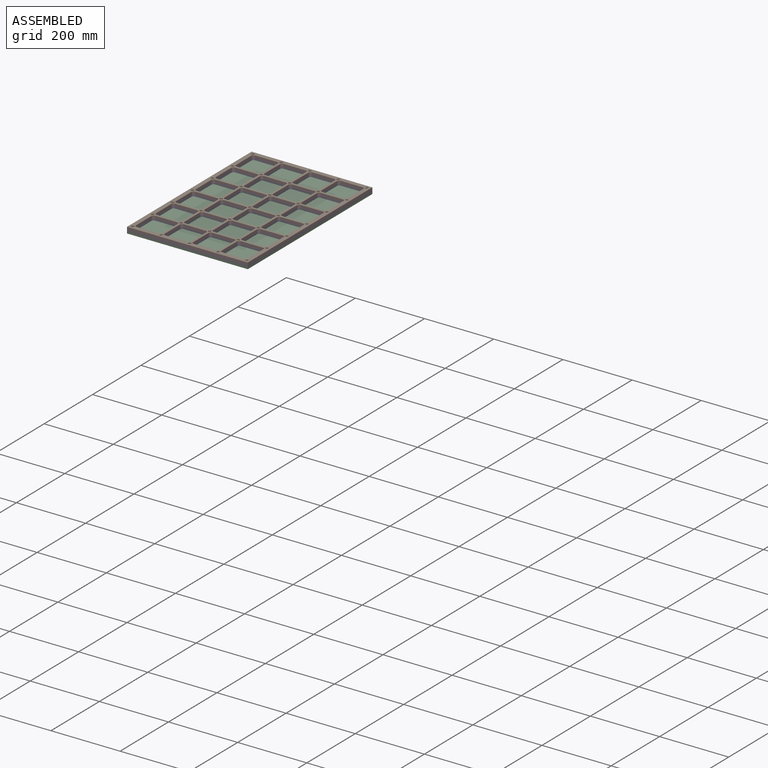
[diagram: assembled view]
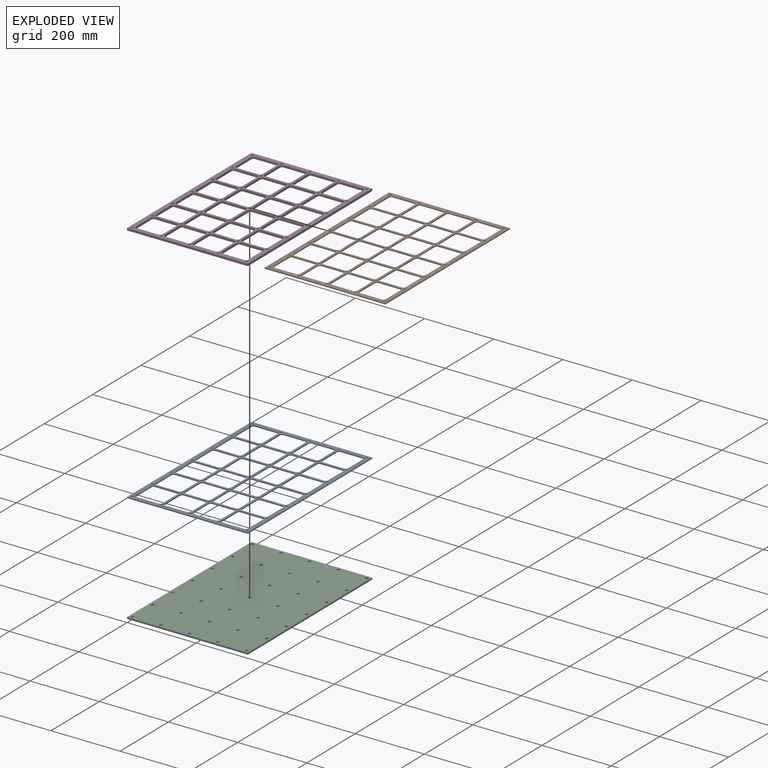
[diagram: exploded view]
GUIDED TOUR — MATED ASSEMBLY (Onshape document f6694bb7066e561d8f96e8ac, AutoMate assembly f6694bb7066e561d8f96e8ac_5a69646c0f88096b816d0bf5_1c54b257c101a52a9ec0c45c_default)

This assembly has 4 components, labeled P0..P3 below (a component is one placed occurrence of a part; the same part can appear more than once), held together by 3 mates. A mate is a constraint between two components; its type names the relative motion it leaves free:
  PLANAR — leaves sliding in the plane through the listed point (normal = the listed direction) and rotation about that normal free.
Axis/direction vectors are unit vectors and 'through' points are millimeter coordinates, both in the assembly's world frame.

MATES
  1. PLANAR "Planar 3": P1 <-> P3, direction (1.000, 0.000, 0.000) through (174.63, 0.00, 14.29) mm
  2. PLANAR "Planar 1": P0 <-> P2, direction (0.000, 0.000, -1.000) through (174.62, 257.17, 4.76) mm
  3. PLANAR "Planar 2": P3 <-> P0, direction (0.000, 1.000, 0.000) through (349.25, 257.17, 7.94) mm

ASSEMBLY ORDER
  1. P3 — the base component [order verified]
  2. P1 [order verified]
  3. P0 [order verified]
  4. P2 [order verified]
Order-tag legend:
  [order verified] — this step's position reverses a verified removal order: the component was checked to insert without passing through the ones already placed.

Of the 4 components, 4 carry the full construction recipe — the FeatureScript program that regenerates the part's solid from scratch; the rest are supplied as boundary geometry only.
Each toured component is shown spotlighted twice — in the assembled view, then in the exploded view, where a leader line traces a displaced component back to its assembled socket (saturated green if recipe-attached, orange if geometry-only; every other component desaturated gray) — followed by its recipe or geometry summary and the mates that hold it.
NOTE — document 2 of 2 of this assembly tour. The two overview renders and the header above are repeated from document 1; the component sections below continue where the previous document stopped.
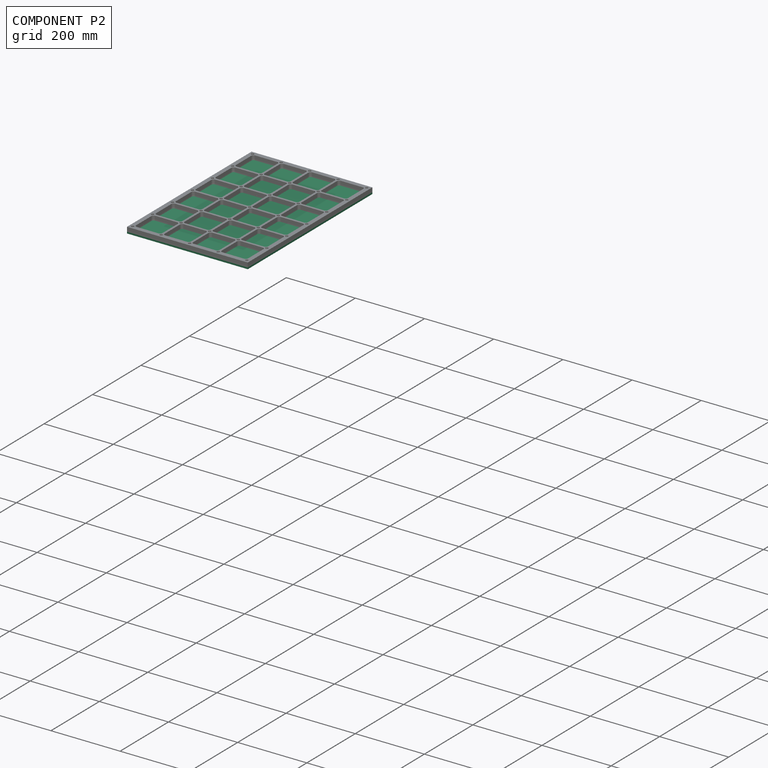
[diagram: component P2 — assembled]
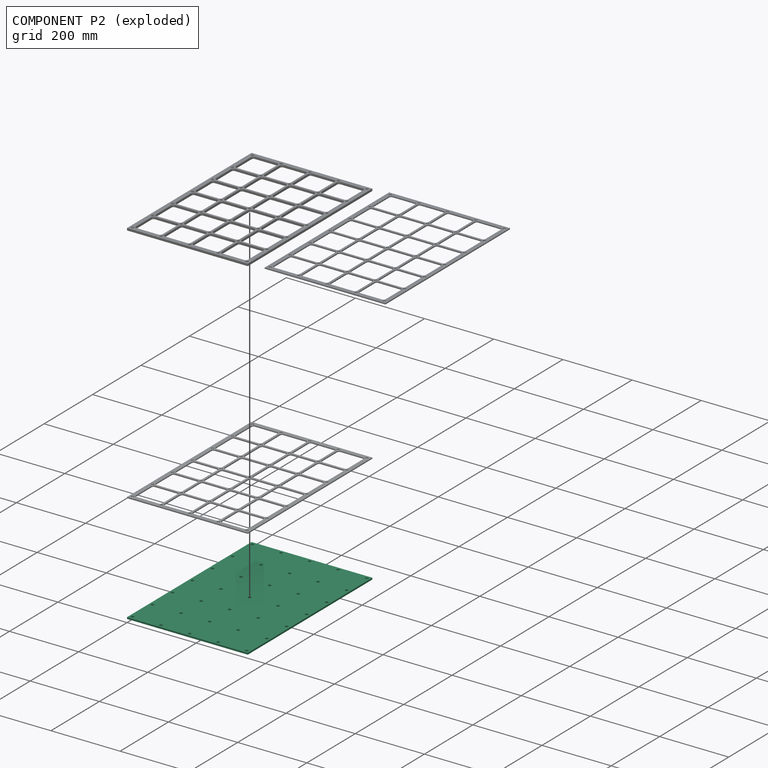
[diagram: component P2 — exploded]
COMPONENT P2 — recipe-attached (CADFS 00901685, mesh-verified: the recipe's output STEP matches this component's geometry to below the mesh-comparison resolution (tessellation chordal tolerance ~0.933 mm)).
Held by: PLANAR mate "Planar 1" to P0.
Construction recipe (FeatureScript — the CAD program that rebuilds this solid; sketch coordinates are in the units given by the * unit suffixes, e.g. mm):

FeatureScript 1511;
import(path : "onshape/std/geometry.fs", version : "1511.0");
import(path : "onshape/std/common.fs", version : "1511.0");
const mm = millimeter;
const VERTEX = EntityType.VERTEX;
const EDGE = EntityType.EDGE;
const FACE = EntityType.FACE;
const BODY = EntityType.BODY;
function v(x, y){return vector(x, y);}
function OD(order){return orderDisambiguation(order);}
function OSD(set){return originalSetDisambiguation(set);}
function TD(topology){return topologyDisambiguation(topology);}
function TDD(query){return trueDependencyDisambiguation(query);}
function sQuery(a, b, c) {return sketchEntityQuery(a, b, c);}

annotation { "Feature Type Name" : "Feature", "Feature Type Description" : "" }
export const myFeature = defineFeature(function(context is Context, id is Id, definition is map)
    precondition{}
    {
        {
            var Q0;
            Q0=qCreatedBy(makeId("Top.planeOp"),FACE);
            var sketch = newSketch(context, id + "F0", { "sketchPlane" : qUnion([Q0])});
            skLineSegment(sketch, "E0.bottom", {"start": v(0, 0) * mm, "end": v(349.25, 0) * mm});
            skLineSegment(sketch, "E0.top", {"start": v(0, 514.35) * mm, "end": v(349.25, 514.35) * mm});
            skLineSegment(sketch, "E0.left", {"start": v(0, 0) * mm, "end": v(0, 514.35) * mm});
            skLineSegment(sketch, "E0.right", {"start": v(349.25, 0) * mm, "end": v(349.25, 514.35) * mm});
            skLineSegment(sketch, "E1.bottom", {"start": v(19.05, 12.7) * mm, "end": v(82.55, 12.7) * mm, "construction": true});
            skLineSegment(sketch, "E1.top", {"start": v(19.05, 88.9) * mm, "end": v(82.55, 88.9) * mm, "construction": true});
            skLineSegment(sketch, "E1.left", {"start": v(12.7, 19.05) * mm, "end": v(12.7, 82.55) * mm, "construction": true});
            skLineSegment(sketch, "E1.right", {"start": v(88.9, 19.05) * mm, "end": v(88.9, 82.55) * mm, "construction": true});
            skArc(sketch, "E2.filletArc", {"start": v(19.05, 88.9) * mm, "mid": v(14.56, 87.04) * mm, "end": v(12.7, 82.55) * mm, "construction": true});
            skArc(sketch, "E3.filletArc", {"start": v(88.9, 82.55) * mm, "mid": v(87.04, 87.04) * mm, "end": v(82.55, 88.9) * mm, "construction": true});
            skArc(sketch, "E4.filletArc", {"start": v(82.55, 12.7) * mm, "mid": v(87.04, 14.56) * mm, "end": v(88.9, 19.05) * mm, "construction": true});
            skArc(sketch, "E5.filletArc", {"start": v(12.7, 19.05) * mm, "mid": v(14.56, 14.56) * mm, "end": v(19.05, 12.7) * mm, "construction": true});
            skLineSegment(sketch, "E6.0.1.0", {"start": v(19.05, 171.45) * mm, "end": v(82.55, 171.45) * mm, "construction": true});
            skLineSegment(sketch, "E6.0.1.1", {"start": v(88.9, 101.6) * mm, "end": v(88.9, 165.1) * mm, "construction": true});
            skArc(sketch, "E6.0.1.2", {"start": v(88.9, 165.1) * mm, "mid": v(87.04, 169.6) * mm, "end": v(82.55, 171.45) * mm, "construction": true});
            skArc(sketch, "E6.0.1.3", {"start": v(82.55, 95.25) * mm, "mid": v(87.04, 97.1) * mm, "end": v(88.9, 101.6) * mm, "construction": true});
            skLineSegment(sketch, "E6.0.1.4", {"start": v(19.05, 95.25) * mm, "end": v(82.55, 95.25) * mm, "construction": true});
            skArc(sketch, "E6.0.1.5", {"start": v(12.7, 101.6) * mm, "mid": v(14.56, 97.1) * mm, "end": v(19.05, 95.25) * mm, "construction": true});
            skLineSegment(sketch, "E6.0.1.6", {"start": v(12.7, 101.6) * mm, "end": v(12.7, 165.1) * mm, "construction": true});
            skArc(sketch, "E6.0.1.7", {"start": v(19.05, 171.45) * mm, "mid": v(14.56, 169.6) * mm, "end": v(12.7, 165.1) * mm, "construction": true});
            skLineSegment(sketch, "E6.0.2.0", {"start": v(19.05, 254) * mm, "end": v(82.55, 254) * mm, "construction": true});
            skLineSegment(sketch, "E6.0.2.1", {"start": v(88.9, 184.15) * mm, "end": v(88.9, 247.65) * mm, "construction": true});
            skArc(sketch, "E6.0.2.2", {"start": v(88.9, 247.65) * mm, "mid": v(87.04, 252.14) * mm, "end": v(82.55, 254) * mm, "construction": true});
            skArc(sketch, "E6.0.2.3", {"start": v(82.55, 177.8) * mm, "mid": v(87.04, 179.66) * mm, "end": v(88.9, 184.15) * mm, "construction": true});
            skLineSegment(sketch, "E6.0.2.4", {"start": v(19.05, 177.8) * mm, "end": v(82.55, 177.8) * mm, "construction": true});
            skArc(sketch, "E6.0.2.5", {"start": v(12.7, 184.15) * mm, "mid": v(14.56, 179.66) * mm, "end": v(19.05, 177.8) * mm, "construction": true});
            skLineSegment(sketch, "E6.0.2.6", {"start": v(12.7, 184.15) * mm, "end": v(12.7, 247.65) * mm, "construction": true});
            skArc(sketch, "E6.0.2.7", {"start": v(19.05, 254) * mm, "mid": v(14.56, 252.14) * mm, "end": v(12.7, 247.65) * mm, "construction": true});
            skLineSegment(sketch, "E6.0.3.0", {"start": v(19.05, 336.55) * mm, "end": v(82.55, 336.55) * mm, "construction": true});
            skLineSegment(sketch, "E6.0.3.1", {"start": v(88.9, 266.7) * mm, "end": v(88.9, 330.2) * mm, "construction": true});
            skArc(sketch, "E6.0.3.2", {"start": v(88.9, 330.2) * mm, "mid": v(87.04, 334.7) * mm, "end": v(82.55, 336.55) * mm, "construction": true});
            skArc(sketch, "E6.0.3.3", {"start": v(82.55, 260.35) * mm, "mid": v(87.04, 262.2) * mm, "end": v(88.9, 266.7) * mm, "construction": true});
            skLineSegment(sketch, "E6.0.3.4", {"start": v(19.05, 260.35) * mm, "end": v(82.55, 260.35) * mm, "construction": true});
            skArc(sketch, "E6.0.3.5", {"start": v(12.7, 266.7) * mm, "mid": v(14.56, 262.2) * mm, "end": v(19.05, 260.35) * mm, "construction": true});
            skLineSegment(sketch, "E6.0.3.6", {"start": v(12.7, 266.7) * mm, "end": v(12.7, 330.2) * mm, "construction": true});
            skArc(sketch, "E6.0.3.7", {"start": v(19.05, 336.55) * mm, "mid": v(14.56, 334.7) * mm, "end": v(12.7, 330.2) * mm, "construction": true});
            skLineSegment(sketch, "E6.0.4.0", {"start": v(19.05, 419.1) * mm, "end": v(82.55, 419.1) * mm, "construction": true});
            skLineSegment(sketch, "E6.0.4.1", {"start": v(88.9, 349.25) * mm, "end": v(88.9, 412.75) * mm, "construction": true});
            skArc(sketch, "E6.0.4.2", {"start": v(88.9, 412.75) * mm, "mid": v(87.04, 417.24) * mm, "end": v(82.55, 419.1) * mm, "construction": true});
            skArc(sketch, "E6.0.4.3", {"start": v(82.55, 342.9) * mm, "mid": v(87.04, 344.76) * mm, "end": v(88.9, 349.25) * mm, "construction": true});
            skLineSegment(sketch, "E6.0.4.4", {"start": v(19.05, 342.9) * mm, "end": v(82.55, 342.9) * mm, "construction": true});
            skArc(sketch, "E6.0.4.5", {"start": v(12.7, 349.25) * mm, "mid": v(14.56, 344.76) * mm, "end": v(19.05, 342.9) * mm, "construction": true});
            skLineSegment(sketch, "E6.0.4.6", {"start": v(12.7, 349.25) * mm, "end": v(12.7, 412.75) * mm, "construction": true});
            skArc(sketch, "E6.0.4.7", {"start": v(19.05, 419.1) * mm, "mid": v(14.56, 417.24) * mm, "end": v(12.7, 412.75) * mm, "construction": true});
            skLineSegment(sketch, "E6.0.5.0", {"start": v(19.05, 501.65) * mm, "end": v(82.55, 501.65) * mm, "construction": true});
            skLineSegment(sketch, "E6.0.5.1", {"start": v(88.9, 431.8) * mm, "end": v(88.9, 495.3) * mm, "construction": true});
            skArc(sketch, "E6.0.5.2", {"start": v(88.9, 495.3) * mm, "mid": v(87.04, 499.8) * mm, "end": v(82.55, 501.65) * mm, "construction": true});
            skArc(sketch, "E6.0.5.3", {"start": v(82.55, 425.45) * mm, "mid": v(87.04, 427.3) * mm, "end": v(88.9, 431.8) * mm, "construction": true});
            skLineSegment(sketch, "E6.0.5.4", {"start": v(19.05, 425.45) * mm, "end": v(82.55, 425.45) * mm, "construction": true});
            skArc(sketch, "E6.0.5.5", {"start": v(12.7, 431.8) * mm, "mid": v(14.56, 427.3) * mm, "end": v(19.05, 425.45) * mm, "construction": true});
            skLineSegment(sketch, "E6.0.5.6", {"start": v(12.7, 431.8) * mm, "end": v(12.7, 495.3) * mm, "construction": true});
            skArc(sketch, "E6.0.5.7", {"start": v(19.05, 501.65) * mm, "mid": v(14.56, 499.8) * mm, "end": v(12.7, 495.3) * mm, "construction": true});
            skLineSegment(sketch, "E6.1.0.0", {"start": v(101.6, 88.9) * mm, "end": v(165.1, 88.9) * mm, "construction": true});
            skLineSegment(sketch, "E6.1.0.1", {"start": v(171.45, 19.05) * mm, "end": v(171.45, 82.55) * mm, "construction": true});
            skArc(sketch, "E6.1.0.2", {"start": v(171.45, 82.55) * mm, "mid": v(169.6, 87.04) * mm, "end": v(165.1, 88.9) * mm, "construction": true});
            skArc(sketch, "E6.1.0.3", {"start": v(165.1, 12.7) * mm, "mid": v(169.6, 14.56) * mm, "end": v(171.45, 19.05) * mm, "construction": true});
            skLineSegment(sketch, "E6.1.0.4", {"start": v(101.6, 12.7) * mm, "end": v(165.1, 12.7) * mm, "construction": true});
            skArc(sketch, "E6.1.0.5", {"start": v(95.25, 19.05) * mm, "mid": v(97.1, 14.56) * mm, "end": v(101.6, 12.7) * mm, "construction": true});
            skLineSegment(sketch, "E6.1.0.6", {"start": v(95.25, 19.05) * mm, "end": v(95.25, 82.55) * mm, "construction": true});
            skArc(sketch, "E6.1.0.7", {"start": v(101.6, 88.9) * mm, "mid": v(97.1, 87.04) * mm, "end": v(95.25, 82.55) * mm, "construction": true});
            skLineSegment(sketch, "E6.1.1.0", {"start": v(101.6, 171.45) * mm, "end": v(165.1, 171.45) * mm, "construction": true});
            skLineSegment(sketch, "E6.1.1.1", {"start": v(171.45, 101.6) * mm, "end": v(171.45, 165.1) * mm, "construction": true});
            skArc(sketch, "E6.1.1.2", {"start": v(171.45, 165.1) * mm, "mid": v(169.6, 169.6) * mm, "end": v(165.1, 171.45) * mm, "construction": true});
            skArc(sketch, "E6.1.1.3", {"start": v(165.1, 95.25) * mm, "mid": v(169.6, 97.1) * mm, "end": v(171.45, 101.6) * mm, "construction": true});
            skLineSegment(sketch, "E6.1.1.4", {"start": v(101.6, 95.25) * mm, "end": v(165.1, 95.25) * mm, "construction": true});
            skArc(sketch, "E6.1.1.5", {"start": v(95.25, 101.6) * mm, "mid": v(97.1, 97.1) * mm, "end": v(101.6, 95.25) * mm, "construction": true});
            skLineSegment(sketch, "E6.1.1.6", {"start": v(95.25, 101.6) * mm, "end": v(95.25, 165.1) * mm, "construction": true});
            skArc(sketch, "E6.1.1.7", {"start": v(101.6, 171.45) * mm, "mid": v(97.1, 169.6) * mm, "end": v(95.25, 165.1) * mm, "construction": true});
            skLineSegment(sketch, "E6.1.2.0", {"start": v(101.6, 254) * mm, "end": v(165.1, 254) * mm, "construction": true});
            skLineSegment(sketch, "E6.1.2.1", {"start": v(171.45, 184.15) * mm, "end": v(171.45, 247.65) * mm, "construction": true});
            skArc(sketch, "E6.1.2.2", {"start": v(171.45, 247.65) * mm, "mid": v(169.6, 252.14) * mm, "end": v(165.1, 254) * mm, "construction": true});
            skArc(sketch, "E6.1.2.3", {"start": v(165.1, 177.8) * mm, "mid": v(169.6, 179.66) * mm, "end": v(171.45, 184.15) * mm, "construction": true});
            skLineSegment(sketch, "E6.1.2.4", {"start": v(101.6, 177.8) * mm, "end": v(165.1, 177.8) * mm, "construction": true});
            skArc(sketch, "E6.1.2.5", {"start": v(95.25, 184.15) * mm, "mid": v(97.1, 179.66) * mm, "end": v(101.6, 177.8) * mm, "construction": true});
            skLineSegment(sketch, "E6.1.2.6", {"start": v(95.25, 184.15) * mm, "end": v(95.25, 247.65) * mm, "construction": true});
            skArc(sketch, "E6.1.2.7", {"start": v(101.6, 254) * mm, "mid": v(97.1, 252.14) * mm, "end": v(95.25, 247.65) * mm, "construction": true});
            skLineSegment(sketch, "E6.1.3.0", {"start": v(101.6, 336.55) * mm, "end": v(165.1, 336.55) * mm, "construction": true});
            skLineSegment(sketch, "E6.1.3.1", {"start": v(171.45, 266.7) * mm, "end": v(171.45, 330.2) * mm, "construction": true});
            skArc(sketch, "E6.1.3.2", {"start": v(171.45, 330.2) * mm, "mid": v(169.6, 334.7) * mm, "end": v(165.1, 336.55) * mm, "construction": true});
            skArc(sketch, "E6.1.3.3", {"start": v(165.1, 260.35) * mm, "mid": v(169.6, 262.2) * mm, "end": v(171.45, 266.7) * mm, "construction": true});
            skLineSegment(sketch, "E6.1.3.4", {"start": v(101.6, 260.35) * mm, "end": v(165.1, 260.35) * mm, "construction": true});
            skArc(sketch, "E6.1.3.5", {"start": v(95.25, 266.7) * mm, "mid": v(97.1, 262.2) * mm, "end": v(101.6, 260.35) * mm, "construction": true});
            skLineSegment(sketch, "E6.1.3.6", {"start": v(95.25, 266.7) * mm, "end": v(95.25, 330.2) * mm, "construction": true});
            skArc(sketch, "E6.1.3.7", {"start": v(101.6, 336.55) * mm, "mid": v(97.1, 334.7) * mm, "end": v(95.25, 330.2) * mm, "construction": true});
            skLineSegment(sketch, "E6.1.4.0", {"start": v(101.6, 419.1) * mm, "end": v(165.1, 419.1) * mm, "construction": true});
            skLineSegment(sketch, "E6.1.4.1", {"start": v(171.45, 349.25) * mm, "end": v(171.45, 412.75) * mm, "construction": true});
            skArc(sketch, "E6.1.4.2", {"start": v(171.45, 412.75) * mm, "mid": v(169.6, 417.24) * mm, "end": v(165.1, 419.1) * mm, "construction": true});
            skArc(sketch, "E6.1.4.3", {"start": v(165.1, 342.9) * mm, "mid": v(169.6, 344.76) * mm, "end": v(171.45, 349.25) * mm, "construction": true});
            skLineSegment(sketch, "E6.1.4.4", {"start": v(101.6, 342.9) * mm, "end": v(165.1, 342.9) * mm, "construction": true});
            skArc(sketch, "E6.1.4.5", {"start": v(95.25, 349.25) * mm, "mid": v(97.1, 344.76) * mm, "end": v(101.6, 342.9) * mm, "construction": true});
            skLineSegment(sketch, "E6.1.4.6", {"start": v(95.25, 349.25) * mm, "end": v(95.25, 412.75) * mm, "construction": true});
            skArc(sketch, "E6.1.4.7", {"start": v(101.6, 419.1) * mm, "mid": v(97.1, 417.24) * mm, "end": v(95.25, 412.75) * mm, "construction": true});
            skLineSegment(sketch, "E6.1.5.0", {"start": v(101.6, 501.65) * mm, "end": v(165.1, 501.65) * mm, "construction": true});
            skLineSegment(sketch, "E6.1.5.1", {"start": v(171.45, 431.8) * mm, "end": v(171.45, 495.3) * mm, "construction": true});
            skArc(sketch, "E6.1.5.2", {"start": v(171.45, 495.3) * mm, "mid": v(169.6, 499.8) * mm, "end": v(165.1, 501.65) * mm, "construction": true});
            skArc(sketch, "E6.1.5.3", {"start": v(165.1, 425.45) * mm, "mid": v(169.6, 427.3) * mm, "end": v(171.45, 431.8) * mm, "construction": true});
            skLineSegment(sketch, "E6.1.5.4", {"start": v(101.6, 425.45) * mm, "end": v(165.1, 425.45) * mm, "construction": true});
            skArc(sketch, "E6.1.5.5", {"start": v(95.25, 431.8) * mm, "mid": v(97.1, 427.3) * mm, "end": v(101.6, 425.45) * mm, "construction": true});
            skLineSegment(sketch, "E6.1.5.6", {"start": v(95.25, 431.8) * mm, "end": v(95.25, 495.3) * mm, "construction": true});
            skArc(sketch, "E6.1.5.7", {"start": v(101.6, 501.65) * mm, "mid": v(97.1, 499.8) * mm, "end": v(95.25, 495.3) * mm, "construction": true});
            skLineSegment(sketch, "E6.2.0.0", {"start": v(184.15, 88.9) * mm, "end": v(247.65, 88.9) * mm, "construction": true});
            skLineSegment(sketch, "E6.2.0.1", {"start": v(254, 19.05) * mm, "end": v(254, 82.55) * mm, "construction": true});
            skArc(sketch, "E6.2.0.2", {"start": v(254, 82.55) * mm, "mid": v(252.14, 87.04) * mm, "end": v(247.65, 88.9) * mm, "construction": true});
            skArc(sketch, "E6.2.0.3", {"start": v(247.65, 12.7) * mm, "mid": v(252.14, 14.56) * mm, "end": v(254, 19.05) * mm, "construction": true});
            skLineSegment(sketch, "E6.2.0.4", {"start": v(184.15, 12.7) * mm, "end": v(247.65, 12.7) * mm, "construction": true});
            skArc(sketch, "E6.2.0.5", {"start": v(177.8, 19.05) * mm, "mid": v(179.66, 14.56) * mm, "end": v(184.15, 12.7) * mm, "construction": true});
            skLineSegment(sketch, "E6.2.0.6", {"start": v(177.8, 19.05) * mm, "end": v(177.8, 82.55) * mm, "construction": true});
            skArc(sketch, "E6.2.0.7", {"start": v(184.15, 88.9) * mm, "mid": v(179.66, 87.04) * mm, "end": v(177.8, 82.55) * mm, "construction": true});
            skLineSegment(sketch, "E6.2.1.0", {"start": v(184.15, 171.45) * mm, "end": v(247.65, 171.45) * mm, "construction": true});
            skLineSegment(sketch, "E6.2.1.1", {"start": v(254, 101.6) * mm, "end": v(254, 165.1) * mm, "construction": true});
            skArc(sketch, "E6.2.1.2", {"start": v(254, 165.1) * mm, "mid": v(252.14, 169.6) * mm, "end": v(247.65, 171.45) * mm, "construction": true});
            skArc(sketch, "E6.2.1.3", {"start": v(247.65, 95.25) * mm, "mid": v(252.14, 97.1) * mm, "end": v(254, 101.6) * mm, "construction": true});
            skLineSegment(sketch, "E6.2.1.4", {"start": v(184.15, 95.25) * mm, "end": v(247.65, 95.25) * mm, "construction": true});
            skArc(sketch, "E6.2.1.5", {"start": v(177.8, 101.6) * mm, "mid": v(179.66, 97.1) * mm, "end": v(184.15, 95.25) * mm, "construction": true});
            skLineSegment(sketch, "E6.2.1.6", {"start": v(177.8, 101.6) * mm, "end": v(177.8, 165.1) * mm, "construction": true});
            skArc(sketch, "E6.2.1.7", {"start": v(184.15, 171.45) * mm, "mid": v(179.66, 169.6) * mm, "end": v(177.8, 165.1) * mm, "construction": true});
            skLineSegment(sketch, "E6.2.2.0", {"start": v(184.15, 254) * mm, "end": v(247.65, 254) * mm, "construction": true});
            skLineSegment(sketch, "E6.2.2.1", {"start": v(254, 184.15) * mm, "end": v(254, 247.65) * mm, "construction": true});
            skArc(sketch, "E6.2.2.2", {"start": v(254, 247.65) * mm, "mid": v(252.14, 252.14) * mm, "end": v(247.65, 254) * mm, "construction": true});
            skArc(sketch, "E6.2.2.3", {"start": v(247.65, 177.8) * mm, "mid": v(252.14, 179.66) * mm, "end": v(254, 184.15) * mm, "construction": true});
            skLineSegment(sketch, "E6.2.2.4", {"start": v(184.15, 177.8) * mm, "end": v(247.65, 177.8) * mm, "construction": true});
            skArc(sketch, "E6.2.2.5", {"start": v(177.8, 184.15) * mm, "mid": v(179.66, 179.66) * mm, "end": v(184.15, 177.8) * mm, "construction": true});
            skLineSegment(sketch, "E6.2.2.6", {"start": v(177.8, 184.15) * mm, "end": v(177.8, 247.65) * mm, "construction": true});
            skArc(sketch, "E6.2.2.7", {"start": v(184.15, 254) * mm, "mid": v(179.66, 252.14) * mm, "end": v(177.8, 247.65) * mm, "construction": true});
            skLineSegment(sketch, "E6.2.3.0", {"start": v(184.15, 336.55) * mm, "end": v(247.65, 336.55) * mm, "construction": true});
            skLineSegment(sketch, "E6.2.3.1", {"start": v(254, 266.7) * mm, "end": v(254, 330.2) * mm, "construction": true});
            skArc(sketch, "E6.2.3.2", {"start": v(254, 330.2) * mm, "mid": v(252.14, 334.7) * mm, "end": v(247.65, 336.55) * mm, "construction": true});
            skArc(sketch, "E6.2.3.3", {"start": v(247.65, 260.35) * mm, "mid": v(252.14, 262.2) * mm, "end": v(254, 266.7) * mm, "construction": true});
            skLineSegment(sketch, "E6.2.3.4", {"start": v(184.15, 260.35) * mm, "end": v(247.65, 260.35) * mm, "construction": true});
            skArc(sketch, "E6.2.3.5", {"start": v(177.8, 266.7) * mm, "mid": v(179.66, 262.2) * mm, "end": v(184.15, 260.35) * mm, "construction": true});
            skLineSegment(sketch, "E6.2.3.6", {"start": v(177.8, 266.7) * mm, "end": v(177.8, 330.2) * mm, "construction": true});
            skArc(sketch, "E6.2.3.7", {"start": v(184.15, 336.55) * mm, "mid": v(179.66, 334.7) * mm, "end": v(177.8, 330.2) * mm, "construction": true});
            skLineSegment(sketch, "E6.2.4.0", {"start": v(184.15, 419.1) * mm, "end": v(247.65, 419.1) * mm, "construction": true});
            skLineSegment(sketch, "E6.2.4.1", {"start": v(254, 349.25) * mm, "end": v(254, 412.75) * mm, "construction": true});
            skArc(sketch, "E6.2.4.2", {"start": v(254, 412.75) * mm, "mid": v(252.14, 417.24) * mm, "end": v(247.65, 419.1) * mm, "construction": true});
            skArc(sketch, "E6.2.4.3", {"start": v(247.65, 342.9) * mm, "mid": v(252.14, 344.76) * mm, "end": v(254, 349.25) * mm, "construction": true});
            skLineSegment(sketch, "E6.2.4.4", {"start": v(184.15, 342.9) * mm, "end": v(247.65, 342.9) * mm, "construction": true});
            skArc(sketch, "E6.2.4.5", {"start": v(177.8, 349.25) * mm, "mid": v(179.66, 344.76) * mm, "end": v(184.15, 342.9) * mm, "construction": true});
            skLineSegment(sketch, "E6.2.4.6", {"start": v(177.8, 349.25) * mm, "end": v(177.8, 412.75) * mm, "construction": true});
            skArc(sketch, "E6.2.4.7", {"start": v(184.15, 419.1) * mm, "mid": v(179.66, 417.24) * mm, "end": v(177.8, 412.75) * mm, "construction": true});
            skLineSegment(sketch, "E6.2.5.0", {"start": v(184.15, 501.65) * mm, "end": v(247.65, 501.65) * mm, "construction": true});
            skLineSegment(sketch, "E6.2.5.1", {"start": v(254, 431.8) * mm, "end": v(254, 495.3) * mm, "construction": true});
            skArc(sketch, "E6.2.5.2", {"start": v(254, 495.3) * mm, "mid": v(252.14, 499.8) * mm, "end": v(247.65, 501.65) * mm, "construction": true});
            skArc(sketch, "E6.2.5.3", {"start": v(247.65, 425.45) * mm, "mid": v(252.14, 427.3) * mm, "end": v(254, 431.8) * mm, "construction": true});
            skLineSegment(sketch, "E6.2.5.4", {"start": v(184.15, 425.45) * mm, "end": v(247.65, 425.45) * mm, "construction": true});
            skArc(sketch, "E6.2.5.5", {"start": v(177.8, 431.8) * mm, "mid": v(179.66, 427.3) * mm, "end": v(184.15, 425.45) * mm, "construction": true});
            skLineSegment(sketch, "E6.2.5.6", {"start": v(177.8, 431.8) * mm, "end": v(177.8, 495.3) * mm, "construction": true});
            skArc(sketch, "E6.2.5.7", {"start": v(184.15, 501.65) * mm, "mid": v(179.66, 499.8) * mm, "end": v(177.8, 495.3) * mm, "construction": true});
            skLineSegment(sketch, "E6.3.0.0", {"start": v(266.7, 88.9) * mm, "end": v(330.2, 88.9) * mm, "construction": true});
            skLineSegment(sketch, "E6.3.0.1", {"start": v(336.55, 19.05) * mm, "end": v(336.55, 82.55) * mm, "construction": true});
            skArc(sketch, "E6.3.0.2", {"start": v(336.55, 82.55) * mm, "mid": v(334.7, 87.04) * mm, "end": v(330.2, 88.9) * mm, "construction": true});
            skArc(sketch, "E6.3.0.3", {"start": v(330.2, 12.7) * mm, "mid": v(334.7, 14.56) * mm, "end": v(336.55, 19.05) * mm, "construction": true});
            skLineSegment(sketch, "E6.3.0.4", {"start": v(266.7, 12.7) * mm, "end": v(330.2, 12.7) * mm, "construction": true});
            skArc(sketch, "E6.3.0.5", {"start": v(260.35, 19.05) * mm, "mid": v(262.2, 14.56) * mm, "end": v(266.7, 12.7) * mm, "construction": true});
            skLineSegment(sketch, "E6.3.0.6", {"start": v(260.35, 19.05) * mm, "end": v(260.35, 82.55) * mm, "construction": true});
            skArc(sketch, "E6.3.0.7", {"start": v(266.7, 88.9) * mm, "mid": v(262.2, 87.04) * mm, "end": v(260.35, 82.55) * mm, "construction": true});
            skLineSegment(sketch, "E6.3.1.0", {"start": v(266.7, 171.45) * mm, "end": v(330.2, 171.45) * mm, "construction": true});
            skLineSegment(sketch, "E6.3.1.1", {"start": v(336.55, 101.6) * mm, "end": v(336.55, 165.1) * mm, "construction": true});
            skArc(sketch, "E6.3.1.2", {"start": v(336.55, 165.1) * mm, "mid": v(334.7, 169.6) * mm, "end": v(330.2, 171.45) * mm, "construction": true});
            skArc(sketch, "E6.3.1.3", {"start": v(330.2, 95.25) * mm, "mid": v(334.7, 97.1) * mm, "end": v(336.55, 101.6) * mm, "construction": true});
            skLineSegment(sketch, "E6.3.1.4", {"start": v(266.7, 95.25) * mm, "end": v(330.2, 95.25) * mm, "construction": true});
            skArc(sketch, "E6.3.1.5", {"start": v(260.35, 101.6) * mm, "mid": v(262.2, 97.1) * mm, "end": v(266.7, 95.25) * mm, "construction": true});
            skLineSegment(sketch, "E6.3.1.6", {"start": v(260.35, 101.6) * mm, "end": v(260.35, 165.1) * mm, "construction": true});
            skArc(sketch, "E6.3.1.7", {"start": v(266.7, 171.45) * mm, "mid": v(262.2, 169.6) * mm, "end": v(260.35, 165.1) * mm, "construction": true});
            skLineSegment(sketch, "E6.3.2.0", {"start": v(266.7, 254) * mm, "end": v(330.2, 254) * mm, "construction": true});
            skLineSegment(sketch, "E6.3.2.1", {"start": v(336.55, 184.15) * mm, "end": v(336.55, 247.65) * mm, "construction": true});
            skArc(sketch, "E6.3.2.2", {"start": v(336.55, 247.65) * mm, "mid": v(334.7, 252.14) * mm, "end": v(330.2, 254) * mm, "construction": true});
            skArc(sketch, "E6.3.2.3", {"start": v(330.2, 177.8) * mm, "mid": v(334.7, 179.66) * mm, "end": v(336.55, 184.15) * mm, "construction": true});
            skLineSegment(sketch, "E6.3.2.4", {"start": v(266.7, 177.8) * mm, "end": v(330.2, 177.8) * mm, "construction": true});
            skArc(sketch, "E6.3.2.5", {"start": v(260.35, 184.15) * mm, "mid": v(262.2, 179.66) * mm, "end": v(266.7, 177.8) * mm, "construction": true});
            skLineSegment(sketch, "E6.3.2.6", {"start": v(260.35, 184.15) * mm, "end": v(260.35, 247.65) * mm, "construction": true});
            skArc(sketch, "E6.3.2.7", {"start": v(266.7, 254) * mm, "mid": v(262.2, 252.14) * mm, "end": v(260.35, 247.65) * mm, "construction": true});
            skLineSegment(sketch, "E6.3.3.0", {"start": v(266.7, 336.55) * mm, "end": v(330.2, 336.55) * mm, "construction": true});
            skLineSegment(sketch, "E6.3.3.1", {"start": v(336.55, 266.7) * mm, "end": v(336.55, 330.2) * mm, "construction": true});
            skArc(sketch, "E6.3.3.2", {"start": v(336.55, 330.2) * mm, "mid": v(334.7, 334.7) * mm, "end": v(330.2, 336.55) * mm, "construction": true});
            skArc(sketch, "E6.3.3.3", {"start": v(330.2, 260.35) * mm, "mid": v(334.7, 262.2) * mm, "end": v(336.55, 266.7) * mm, "construction": true});
            skLineSegment(sketch, "E6.3.3.4", {"start": v(266.7, 260.35) * mm, "end": v(330.2, 260.35) * mm, "construction": true});
            skArc(sketch, "E6.3.3.5", {"start": v(260.35, 266.7) * mm, "mid": v(262.2, 262.2) * mm, "end": v(266.7, 260.35) * mm, "construction": true});
            skLineSegment(sketch, "E6.3.3.6", {"start": v(260.35, 266.7) * mm, "end": v(260.35, 330.2) * mm, "construction": true});
            skArc(sketch, "E6.3.3.7", {"start": v(266.7, 336.55) * mm, "mid": v(262.2, 334.7) * mm, "end": v(260.35, 330.2) * mm, "construction": true});
            skLineSegment(sketch, "E6.3.4.0", {"start": v(266.7, 419.1) * mm, "end": v(330.2, 419.1) * mm, "construction": true});
            skLineSegment(sketch, "E6.3.4.1", {"start": v(336.55, 349.25) * mm, "end": v(336.55, 412.75) * mm, "construction": true});
            skArc(sketch, "E6.3.4.2", {"start": v(336.55, 412.75) * mm, "mid": v(334.7, 417.24) * mm, "end": v(330.2, 419.1) * mm, "construction": true});
            skArc(sketch, "E6.3.4.3", {"start": v(330.2, 342.9) * mm, "mid": v(334.7, 344.76) * mm, "end": v(336.55, 349.25) * mm, "construction": true});
            skLineSegment(sketch, "E6.3.4.4", {"start": v(266.7, 342.9) * mm, "end": v(330.2, 342.9) * mm, "construction": true});
            skArc(sketch, "E6.3.4.5", {"start": v(260.35, 349.25) * mm, "mid": v(262.2, 344.76) * mm, "end": v(266.7, 342.9) * mm, "construction": true});
            skLineSegment(sketch, "E6.3.4.6", {"start": v(260.35, 349.25) * mm, "end": v(260.35, 412.75) * mm, "construction": true});
            skArc(sketch, "E6.3.4.7", {"start": v(266.7, 419.1) * mm, "mid": v(262.2, 417.24) * mm, "end": v(260.35, 412.75) * mm, "construction": true});
            skLineSegment(sketch, "E6.3.5.0", {"start": v(266.7, 501.65) * mm, "end": v(330.2, 501.65) * mm, "construction": true});
            skLineSegment(sketch, "E6.3.5.1", {"start": v(336.55, 431.8) * mm, "end": v(336.55, 495.3) * mm, "construction": true});
            skArc(sketch, "E6.3.5.2", {"start": v(336.55, 495.3) * mm, "mid": v(334.7, 499.8) * mm, "end": v(330.2, 501.65) * mm, "construction": true});
            skArc(sketch, "E6.3.5.3", {"start": v(330.2, 425.45) * mm, "mid": v(334.7, 427.3) * mm, "end": v(336.55, 431.8) * mm, "construction": true});
            skLineSegment(sketch, "E6.3.5.4", {"start": v(266.7, 425.45) * mm, "end": v(330.2, 425.45) * mm, "construction": true});
            skArc(sketch, "E6.3.5.5", {"start": v(260.35, 431.8) * mm, "mid": v(262.2, 427.3) * mm, "end": v(266.7, 425.45) * mm, "construction": true});
            skLineSegment(sketch, "E6.3.5.6", {"start": v(260.35, 431.8) * mm, "end": v(260.35, 495.3) * mm, "construction": true});
            skArc(sketch, "E6.3.5.7", {"start": v(266.7, 501.65) * mm, "mid": v(262.2, 499.8) * mm, "end": v(260.35, 495.3) * mm, "construction": true});
            skLineSegment(sketch, "E6.direction1", {"start": v(19.05, 12.7) * mm, "end": v(101.6, 12.7) * mm, "construction": true});
            skLineSegment(sketch, "E6.direction2", {"start": v(19.05, 12.7) * mm, "end": v(19.05, 95.25) * mm, "construction": true});
            skLineSegment(sketch, "E7", {"start": v(165.1, 101.6) * mm, "end": v(184.15, 82.55) * mm, "construction": true});
            skLineSegment(sketch, "E8", {"start": v(266.7, 101.6) * mm, "end": v(247.65, 82.55) * mm, "construction": true});
            skLineSegment(sketch, "E9", {"start": v(247.65, 184.15) * mm, "end": v(266.7, 165.1) * mm, "construction": true});
            skLineSegment(sketch, "E10", {"start": v(184.15, 184.15) * mm, "end": v(165.1, 165.1) * mm, "construction": true});
            skLineSegment(sketch, "E11", {"start": v(174.63, 174.63) * mm, "end": v(174.63, 92.08) * mm, "construction": true});
            skLineSegment(sketch, "E12", {"start": v(174.63, 92.08) * mm, "end": v(257.18, 92.08) * mm, "construction": true});
            skCircle(sketch, "E13", {"center": v(9.53, 9.53) * mm, "radius": 3.97 * mm, "construction": true});
            skCircle(sketch, "E14.0.1.0", {"center": v(9.53, 92.08) * mm, "radius": 3.97 * mm, "construction": true});
            skCircle(sketch, "E14.0.2.0", {"center": v(9.53, 174.63) * mm, "radius": 3.97 * mm, "construction": true});
            skCircle(sketch, "E14.0.3.0", {"center": v(9.53, 257.18) * mm, "radius": 3.97 * mm, "construction": true});
            skCircle(sketch, "E14.0.4.0", {"center": v(9.53, 339.73) * mm, "radius": 3.97 * mm, "construction": true});
            skCircle(sketch, "E14.0.5.0", {"center": v(9.53, 422.28) * mm, "radius": 3.97 * mm, "construction": true});
            skCircle(sketch, "E14.0.6.0", {"center": v(9.53, 504.83) * mm, "radius": 3.97 * mm, "construction": true});
            skCircle(sketch, "E14.1.0.0", {"center": v(92.08, 9.53) * mm, "radius": 3.97 * mm, "construction": true});
            skCircle(sketch, "E14.1.1.0", {"center": v(92.08, 92.08) * mm, "radius": 3.97 * mm, "construction": true});
            skCircle(sketch, "E14.1.2.0", {"center": v(92.08, 174.63) * mm, "radius": 3.97 * mm, "construction": true});
            skCircle(sketch, "E14.1.3.0", {"center": v(92.08, 257.18) * mm, "radius": 3.97 * mm, "construction": true});
            skCircle(sketch, "E14.1.4.0", {"center": v(92.08, 339.73) * mm, "radius": 3.97 * mm, "construction": true});
            skCircle(sketch, "E14.1.5.0", {"center": v(92.08, 422.28) * mm, "radius": 3.97 * mm, "construction": true});
            skCircle(sketch, "E14.1.6.0", {"center": v(92.08, 504.83) * mm, "radius": 3.97 * mm, "construction": true});
            skCircle(sketch, "E14.2.0.0", {"center": v(174.63, 9.53) * mm, "radius": 3.97 * mm, "construction": true});
            skCircle(sketch, "E14.2.1.0", {"center": v(174.63, 92.08) * mm, "radius": 3.97 * mm, "construction": true});
            skCircle(sketch, "E14.2.2.0", {"center": v(174.63, 174.63) * mm, "radius": 3.97 * mm, "construction": true});
            skCircle(sketch, "E14.2.3.0", {"center": v(174.63, 257.18) * mm, "radius": 3.97 * mm, "construction": true});
            skCircle(sketch, "E14.2.4.0", {"center": v(174.63, 339.73) * mm, "radius": 3.97 * mm, "construction": true});
            skCircle(sketch, "E14.2.5.0", {"center": v(174.63, 422.28) * mm, "radius": 3.97 * mm, "construction": true});
            skCircle(sketch, "E14.2.6.0", {"center": v(174.63, 504.83) * mm, "radius": 3.97 * mm, "construction": true});
            skCircle(sketch, "E14.3.0.0", {"center": v(257.18, 9.53) * mm, "radius": 3.97 * mm, "construction": true});
            skCircle(sketch, "E14.3.1.0", {"center": v(257.18, 92.08) * mm, "radius": 3.97 * mm, "construction": true});
            skCircle(sketch, "E14.3.2.0", {"center": v(257.18, 174.63) * mm, "radius": 3.97 * mm, "construction": true});
            skCircle(sketch, "E14.3.3.0", {"center": v(257.18, 257.18) * mm, "radius": 3.97 * mm, "construction": true});
            skCircle(sketch, "E14.3.4.0", {"center": v(257.18, 339.73) * mm, "radius": 3.97 * mm, "construction": true});
            skCircle(sketch, "E14.3.5.0", {"center": v(257.18, 422.28) * mm, "radius": 3.97 * mm, "construction": true});
            skCircle(sketch, "E14.3.6.0", {"center": v(257.18, 504.83) * mm, "radius": 3.97 * mm, "construction": true});
            skCircle(sketch, "E14.4.0.0", {"center": v(339.73, 9.53) * mm, "radius": 3.97 * mm, "construction": true});
            skCircle(sketch, "E14.4.1.0", {"center": v(339.73, 92.08) * mm, "radius": 3.97 * mm, "construction": true});
            skCircle(sketch, "E14.4.2.0", {"center": v(339.73, 174.63) * mm, "radius": 3.97 * mm, "construction": true});
            skCircle(sketch, "E14.4.3.0", {"center": v(339.73, 257.18) * mm, "radius": 3.97 * mm, "construction": true});
            skCircle(sketch, "E14.4.4.0", {"center": v(339.73, 339.73) * mm, "radius": 3.97 * mm, "construction": true});
            skCircle(sketch, "E14.4.5.0", {"center": v(339.73, 422.28) * mm, "radius": 3.97 * mm, "construction": true});
            skCircle(sketch, "E14.4.6.0", {"center": v(339.73, 504.83) * mm, "radius": 3.97 * mm, "construction": true});
            skLineSegment(sketch, "E14.direction1", {"start": v(9.53, 9.53) * mm, "end": v(92.08, 9.53) * mm, "construction": true});
            skLineSegment(sketch, "E14.direction2", {"start": v(9.53, 9.53) * mm, "end": v(9.53, 92.08) * mm, "construction": true});
            skLineSegment(sketch, "E15.bottom", {"start": v(5.56, 5.56) * mm, "end": v(13.5, 5.56) * mm});
            skLineSegment(sketch, "E15.top", {"start": v(5.56, 13.5) * mm, "end": v(13.5, 13.5) * mm});
            skLineSegment(sketch, "E15.left", {"start": v(5.56, 5.56) * mm, "end": v(5.56, 13.5) * mm});
            skLineSegment(sketch, "E15.right", {"start": v(13.5, 5.56) * mm, "end": v(13.5, 13.5) * mm});
            skLineSegment(sketch, "E16.0.1.0", {"start": v(5.56, 96.04) * mm, "end": v(13.5, 96.04) * mm});
            skLineSegment(sketch, "E16.0.1.1", {"start": v(13.5, 88.1) * mm, "end": v(13.5, 96.04) * mm});
            skLineSegment(sketch, "E16.0.1.2", {"start": v(5.56, 88.1) * mm, "end": v(13.5, 88.1) * mm});
            skLineSegment(sketch, "E16.0.1.3", {"start": v(5.56, 88.1) * mm, "end": v(5.56, 96.04) * mm});
            skLineSegment(sketch, "E16.0.2.0", {"start": v(5.56, 178.6) * mm, "end": v(13.5, 178.6) * mm});
            skLineSegment(sketch, "E16.0.2.1", {"start": v(13.5, 170.66) * mm, "end": v(13.5, 178.6) * mm});
            skLineSegment(sketch, "E16.0.2.2", {"start": v(5.56, 170.66) * mm, "end": v(13.5, 170.66) * mm});
            skLineSegment(sketch, "E16.0.2.3", {"start": v(5.56, 170.66) * mm, "end": v(5.56, 178.6) * mm});
            skLineSegment(sketch, "E16.0.3.0", {"start": v(5.56, 261.14) * mm, "end": v(13.5, 261.14) * mm});
            skLineSegment(sketch, "E16.0.3.1", {"start": v(13.5, 253.2) * mm, "end": v(13.5, 261.14) * mm});
            skLineSegment(sketch, "E16.0.3.2", {"start": v(5.56, 253.2) * mm, "end": v(13.5, 253.2) * mm});
            skLineSegment(sketch, "E16.0.3.3", {"start": v(5.56, 253.2) * mm, "end": v(5.56, 261.14) * mm});
            skLineSegment(sketch, "E16.0.4.0", {"start": v(5.56, 343.7) * mm, "end": v(13.5, 343.7) * mm});
            skLineSegment(sketch, "E16.0.4.1", {"start": v(13.5, 335.76) * mm, "end": v(13.5, 343.7) * mm});
            skLineSegment(sketch, "E16.0.4.2", {"start": v(5.56, 335.76) * mm, "end": v(13.5, 335.76) * mm});
            skLineSegment(sketch, "E16.0.4.3", {"start": v(5.56, 335.76) * mm, "end": v(5.56, 343.7) * mm});
            skLineSegment(sketch, "E16.0.5.0", {"start": v(5.56, 426.24) * mm, "end": v(13.5, 426.24) * mm});
            skLineSegment(sketch, "E16.0.5.1", {"start": v(13.5, 418.3) * mm, "end": v(13.5, 426.24) * mm});
            skLineSegment(sketch, "E16.0.5.2", {"start": v(5.56, 418.3) * mm, "end": v(13.5, 418.3) * mm});
            skLineSegment(sketch, "E16.0.5.3", {"start": v(5.56, 418.3) * mm, "end": v(5.56, 426.24) * mm});
            skLineSegment(sketch, "E16.0.6.0", {"start": v(5.56, 508.8) * mm, "end": v(13.5, 508.8) * mm});
            skLineSegment(sketch, "E16.0.6.1", {"start": v(13.5, 500.86) * mm, "end": v(13.5, 508.8) * mm});
            skLineSegment(sketch, "E16.0.6.2", {"start": v(5.56, 500.86) * mm, "end": v(13.5, 500.86) * mm});
            skLineSegment(sketch, "E16.0.6.3", {"start": v(5.56, 500.86) * mm, "end": v(5.56, 508.8) * mm});
            skLineSegment(sketch, "E16.1.0.0", {"start": v(88.1, 13.5) * mm, "end": v(96.04, 13.5) * mm});
            skLineSegment(sketch, "E16.1.0.1", {"start": v(96.04, 5.56) * mm, "end": v(96.04, 13.5) * mm});
            skLineSegment(sketch, "E16.1.0.2", {"start": v(88.1, 5.56) * mm, "end": v(96.04, 5.56) * mm});
            skLineSegment(sketch, "E16.1.0.3", {"start": v(88.1, 5.56) * mm, "end": v(88.1, 13.5) * mm});
            skLineSegment(sketch, "E16.1.1.0", {"start": v(88.1, 96.04) * mm, "end": v(96.04, 96.04) * mm});
            skLineSegment(sketch, "E16.1.1.1", {"start": v(96.04, 88.1) * mm, "end": v(96.04, 96.04) * mm});
            skLineSegment(sketch, "E16.1.1.2", {"start": v(88.1, 88.1) * mm, "end": v(96.04, 88.1) * mm});
            skLineSegment(sketch, "E16.1.1.3", {"start": v(88.1, 88.1) * mm, "end": v(88.1, 96.04) * mm});
            skLineSegment(sketch, "E16.1.2.0", {"start": v(88.1, 178.6) * mm, "end": v(96.04, 178.6) * mm});
            skLineSegment(sketch, "E16.1.2.1", {"start": v(96.04, 170.66) * mm, "end": v(96.04, 178.6) * mm});
            skLineSegment(sketch, "E16.1.2.2", {"start": v(88.1, 170.66) * mm, "end": v(96.04, 170.66) * mm});
            skLineSegment(sketch, "E16.1.2.3", {"start": v(88.1, 170.66) * mm, "end": v(88.1, 178.6) * mm});
            skLineSegment(sketch, "E16.1.3.0", {"start": v(88.1, 261.14) * mm, "end": v(96.04, 261.14) * mm});
            skLineSegment(sketch, "E16.1.3.1", {"start": v(96.04, 253.2) * mm, "end": v(96.04, 261.14) * mm});
            skLineSegment(sketch, "E16.1.3.2", {"start": v(88.1, 253.2) * mm, "end": v(96.04, 253.2) * mm});
            skLineSegment(sketch, "E16.1.3.3", {"start": v(88.1, 253.2) * mm, "end": v(88.1, 261.14) * mm});
            skLineSegment(sketch, "E16.1.4.0", {"start": v(88.1, 343.7) * mm, "end": v(96.04, 343.7) * mm});
            skLineSegment(sketch, "E16.1.4.1", {"start": v(96.04, 335.76) * mm, "end": v(96.04, 343.7) * mm});
            skLineSegment(sketch, "E16.1.4.2", {"start": v(88.1, 335.76) * mm, "end": v(96.04, 335.76) * mm});
            skLineSegment(sketch, "E16.1.4.3", {"start": v(88.1, 335.76) * mm, "end": v(88.1, 343.7) * mm});
            skLineSegment(sketch, "E16.1.5.0", {"start": v(88.1, 426.24) * mm, "end": v(96.04, 426.24) * mm});
            skLineSegment(sketch, "E16.1.5.1", {"start": v(96.04, 418.3) * mm, "end": v(96.04, 426.24) * mm});
            skLineSegment(sketch, "E16.1.5.2", {"start": v(88.1, 418.3) * mm, "end": v(96.04, 418.3) * mm});
            skLineSegment(sketch, "E16.1.5.3", {"start": v(88.1, 418.3) * mm, "end": v(88.1, 426.24) * mm});
            skLineSegment(sketch, "E16.1.6.0", {"start": v(88.1, 508.8) * mm, "end": v(96.04, 508.8) * mm});
            skLineSegment(sketch, "E16.1.6.1", {"start": v(96.04, 500.86) * mm, "end": v(96.04, 508.8) * mm});
            skLineSegment(sketch, "E16.1.6.2", {"start": v(88.1, 500.86) * mm, "end": v(96.04, 500.86) * mm});
            skLineSegment(sketch, "E16.1.6.3", {"start": v(88.1, 500.86) * mm, "end": v(88.1, 508.8) * mm});
            skLineSegment(sketch, "E16.2.0.0", {"start": v(170.66, 13.5) * mm, "end": v(178.6, 13.5) * mm});
            skLineSegment(sketch, "E16.2.0.1", {"start": v(178.6, 5.56) * mm, "end": v(178.6, 13.5) * mm});
            skLineSegment(sketch, "E16.2.0.2", {"start": v(170.66, 5.56) * mm, "end": v(178.6, 5.56) * mm});
            skLineSegment(sketch, "E16.2.0.3", {"start": v(170.66, 5.56) * mm, "end": v(170.66, 13.5) * mm});
            skLineSegment(sketch, "E16.2.1.0", {"start": v(170.66, 96.04) * mm, "end": v(178.6, 96.04) * mm});
            skLineSegment(sketch, "E16.2.1.1", {"start": v(178.6, 88.1) * mm, "end": v(178.6, 96.04) * mm});
            skLineSegment(sketch, "E16.2.1.2", {"start": v(170.66, 88.1) * mm, "end": v(178.6, 88.1) * mm});
            skLineSegment(sketch, "E16.2.1.3", {"start": v(170.66, 88.1) * mm, "end": v(170.66, 96.04) * mm});
            skLineSegment(sketch, "E16.2.2.0", {"start": v(170.66, 178.6) * mm, "end": v(178.6, 178.6) * mm});
            skLineSegment(sketch, "E16.2.2.1", {"start": v(178.6, 170.66) * mm, "end": v(178.6, 178.6) * mm});
            skLineSegment(sketch, "E16.2.2.2", {"start": v(170.66, 170.66) * mm, "end": v(178.6, 170.66) * mm});
            skLineSegment(sketch, "E16.2.2.3", {"start": v(170.66, 170.66) * mm, "end": v(170.66, 178.6) * mm});
            skLineSegment(sketch, "E16.2.3.0", {"start": v(170.66, 261.14) * mm, "end": v(178.6, 261.14) * mm});
            skLineSegment(sketch, "E16.2.3.1", {"start": v(178.6, 253.2) * mm, "end": v(178.6, 261.14) * mm});
            skLineSegment(sketch, "E16.2.3.2", {"start": v(170.66, 253.2) * mm, "end": v(178.6, 253.2) * mm});
            skLineSegment(sketch, "E16.2.3.3", {"start": v(170.66, 253.2) * mm, "end": v(170.66, 261.14) * mm});
            skLineSegment(sketch, "E16.2.4.0", {"start": v(170.66, 343.7) * mm, "end": v(178.6, 343.7) * mm});
            skLineSegment(sketch, "E16.2.4.1", {"start": v(178.6, 335.76) * mm, "end": v(178.6, 343.7) * mm});
            skLineSegment(sketch, "E16.2.4.2", {"start": v(170.66, 335.76) * mm, "end": v(178.6, 335.76) * mm});
            skLineSegment(sketch, "E16.2.4.3", {"start": v(170.66, 335.76) * mm, "end": v(170.66, 343.7) * mm});
            skLineSegment(sketch, "E16.2.5.0", {"start": v(170.66, 426.24) * mm, "end": v(178.6, 426.24) * mm});
            skLineSegment(sketch, "E16.2.5.1", {"start": v(178.6, 418.3) * mm, "end": v(178.6, 426.24) * mm});
            skLineSegment(sketch, "E16.2.5.2", {"start": v(170.66, 418.3) * mm, "end": v(178.6, 418.3) * mm});
            skLineSegment(sketch, "E16.2.5.3", {"start": v(170.66, 418.3) * mm, "end": v(170.66, 426.24) * mm});
            skLineSegment(sketch, "E16.2.6.0", {"start": v(170.66, 508.8) * mm, "end": v(178.6, 508.8) * mm});
            skLineSegment(sketch, "E16.2.6.1", {"start": v(178.6, 500.86) * mm, "end": v(178.6, 508.8) * mm});
            skLineSegment(sketch, "E16.2.6.2", {"start": v(170.66, 500.86) * mm, "end": v(178.6, 500.86) * mm});
            skLineSegment(sketch, "E16.2.6.3", {"start": v(170.66, 500.86) * mm, "end": v(170.66, 508.8) * mm});
            skLineSegment(sketch, "E16.3.0.0", {"start": v(253.2, 13.5) * mm, "end": v(261.14, 13.5) * mm});
            skLineSegment(sketch, "E16.3.0.1", {"start": v(261.14, 5.56) * mm, "end": v(261.14, 13.5) * mm});
            skLineSegment(sketch, "E16.3.0.2", {"start": v(253.2, 5.56) * mm, "end": v(261.14, 5.56) * mm});
            skLineSegment(sketch, "E16.3.0.3", {"start": v(253.2, 5.56) * mm, "end": v(253.2, 13.5) * mm});
            skLineSegment(sketch, "E16.3.1.0", {"start": v(253.2, 96.04) * mm, "end": v(261.14, 96.04) * mm});
            skLineSegment(sketch, "E16.3.1.1", {"start": v(261.14, 88.1) * mm, "end": v(261.14, 96.04) * mm});
            skLineSegment(sketch, "E16.3.1.2", {"start": v(253.2, 88.1) * mm, "end": v(261.14, 88.1) * mm});
            skLineSegment(sketch, "E16.3.1.3", {"start": v(253.2, 88.1) * mm, "end": v(253.2, 96.04) * mm});
            skLineSegment(sketch, "E16.3.2.0", {"start": v(253.2, 178.6) * mm, "end": v(261.14, 178.6) * mm});
            skLineSegment(sketch, "E16.3.2.1", {"start": v(261.14, 170.66) * mm, "end": v(261.14, 178.6) * mm});
            skLineSegment(sketch, "E16.3.2.2", {"start": v(253.2, 170.66) * mm, "end": v(261.14, 170.66) * mm});
            skLineSegment(sketch, "E16.3.2.3", {"start": v(253.2, 170.66) * mm, "end": v(253.2, 178.6) * mm});
            skLineSegment(sketch, "E16.3.3.0", {"start": v(253.2, 261.14) * mm, "end": v(261.14, 261.14) * mm});
            skLineSegment(sketch, "E16.3.3.1", {"start": v(261.14, 253.2) * mm, "end": v(261.14, 261.14) * mm});
            skLineSegment(sketch, "E16.3.3.2", {"start": v(253.2, 253.2) * mm, "end": v(261.14, 253.2) * mm});
            skLineSegment(sketch, "E16.3.3.3", {"start": v(253.2, 253.2) * mm, "end": v(253.2, 261.14) * mm});
            skLineSegment(sketch, "E16.3.4.0", {"start": v(253.2, 343.7) * mm, "end": v(261.14, 343.7) * mm});
            skLineSegment(sketch, "E16.3.4.1", {"start": v(261.14, 335.76) * mm, "end": v(261.14, 343.7) * mm});
            skLineSegment(sketch, "E16.3.4.2", {"start": v(253.2, 335.76) * mm, "end": v(261.14, 335.76) * mm});
            skLineSegment(sketch, "E16.3.4.3", {"start": v(253.2, 335.76) * mm, "end": v(253.2, 343.7) * mm});
            skLineSegment(sketch, "E16.3.5.0", {"start": v(253.2, 426.24) * mm, "end": v(261.14, 426.24) * mm});
            skLineSegment(sketch, "E16.3.5.1", {"start": v(261.14, 418.3) * mm, "end": v(261.14, 426.24) * mm});
            skLineSegment(sketch, "E16.3.5.2", {"start": v(253.2, 418.3) * mm, "end": v(261.14, 418.3) * mm});
            skLineSegment(sketch, "E16.3.5.3", {"start": v(253.2, 418.3) * mm, "end": v(253.2, 426.24) * mm});
            skLineSegment(sketch, "E16.3.6.0", {"start": v(253.2, 508.8) * mm, "end": v(261.14, 508.8) * mm});
            skLineSegment(sketch, "E16.3.6.1", {"start": v(261.14, 500.86) * mm, "end": v(261.14, 508.8) * mm});
            skLineSegment(sketch, "E16.3.6.2", {"start": v(253.2, 500.86) * mm, "end": v(261.14, 500.86) * mm});
            skLineSegment(sketch, "E16.3.6.3", {"start": v(253.2, 500.86) * mm, "end": v(253.2, 508.8) * mm});
            skLineSegment(sketch, "E16.4.0.0", {"start": v(335.76, 13.5) * mm, "end": v(343.7, 13.5) * mm});
            skLineSegment(sketch, "E16.4.0.1", {"start": v(343.7, 5.56) * mm, "end": v(343.7, 13.5) * mm});
            skLineSegment(sketch, "E16.4.0.2", {"start": v(335.76, 5.56) * mm, "end": v(343.7, 5.56) * mm});
            skLineSegment(sketch, "E16.4.0.3", {"start": v(335.76, 5.56) * mm, "end": v(335.76, 13.5) * mm});
            skLineSegment(sketch, "E16.4.1.0", {"start": v(335.76, 96.04) * mm, "end": v(343.7, 96.04) * mm});
            skLineSegment(sketch, "E16.4.1.1", {"start": v(343.7, 88.1) * mm, "end": v(343.7, 96.04) * mm});
            skLineSegment(sketch, "E16.4.1.2", {"start": v(335.76, 88.1) * mm, "end": v(343.7, 88.1) * mm});
            skLineSegment(sketch, "E16.4.1.3", {"start": v(335.76, 88.1) * mm, "end": v(335.76, 96.04) * mm});
            skLineSegment(sketch, "E16.4.2.0", {"start": v(335.76, 178.6) * mm, "end": v(343.7, 178.6) * mm});
            skLineSegment(sketch, "E16.4.2.1", {"start": v(343.7, 170.66) * mm, "end": v(343.7, 178.6) * mm});
            skLineSegment(sketch, "E16.4.2.2", {"start": v(335.76, 170.66) * mm, "end": v(343.7, 170.66) * mm});
            skLineSegment(sketch, "E16.4.2.3", {"start": v(335.76, 170.66) * mm, "end": v(335.76, 178.6) * mm});
            skLineSegment(sketch, "E16.4.3.0", {"start": v(335.76, 261.14) * mm, "end": v(343.7, 261.14) * mm});
            skLineSegment(sketch, "E16.4.3.1", {"start": v(343.7, 253.2) * mm, "end": v(343.7, 261.14) * mm});
            skLineSegment(sketch, "E16.4.3.2", {"start": v(335.76, 253.2) * mm, "end": v(343.7, 253.2) * mm});
            skLineSegment(sketch, "E16.4.3.3", {"start": v(335.76, 253.2) * mm, "end": v(335.76, 261.14) * mm});
            skLineSegment(sketch, "E16.4.4.0", {"start": v(335.76, 343.7) * mm, "end": v(343.7, 343.7) * mm});
            skLineSegment(sketch, "E16.4.4.1", {"start": v(343.7, 335.76) * mm, "end": v(343.7, 343.7) * mm});
            skLineSegment(sketch, "E16.4.4.2", {"start": v(335.76, 335.76) * mm, "end": v(343.7, 335.76) * mm});
            skLineSegment(sketch, "E16.4.4.3", {"start": v(335.76, 335.76) * mm, "end": v(335.76, 343.7) * mm});
            skLineSegment(sketch, "E16.4.5.0", {"start": v(335.76, 426.24) * mm, "end": v(343.7, 426.24) * mm});
            skLineSegment(sketch, "E16.4.5.1", {"start": v(343.7, 418.3) * mm, "end": v(343.7, 426.24) * mm});
            skLineSegment(sketch, "E16.4.5.2", {"start": v(335.76, 418.3) * mm, "end": v(343.7, 418.3) * mm});
            skLineSegment(sketch, "E16.4.5.3", {"start": v(335.76, 418.3) * mm, "end": v(335.76, 426.24) * mm});
            skLineSegment(sketch, "E16.4.6.0", {"start": v(335.76, 508.8) * mm, "end": v(343.7, 508.8) * mm});
            skLineSegment(sketch, "E16.4.6.1", {"start": v(343.7, 500.86) * mm, "end": v(343.7, 508.8) * mm});
            skLineSegment(sketch, "E16.4.6.2", {"start": v(335.76, 500.86) * mm, "end": v(343.7, 500.86) * mm});
            skLineSegment(sketch, "E16.4.6.3", {"start": v(335.76, 500.86) * mm, "end": v(335.76, 508.8) * mm});
            skLineSegment(sketch, "E16.direction1", {"start": v(5.56, 5.56) * mm, "end": v(88.1, 5.56) * mm, "construction": true});
            skLineSegment(sketch, "E16.direction2", {"start": v(5.56, 5.56) * mm, "end": v(5.56, 88.1) * mm, "construction": true});
            skSolve(sketch);
        }
        {
            var Q0;
            Q0=makeQuery(id+"F0.imprint","IMPRINT",FACE,{"disambiguationData":[TD([[makeQuery(id+"F0.imprint","IMPRINT",EDGE,{"derivedFrom":sQuery(id+"F0.wireOp",EDGE,"E0.bottom")}),1.0]])]});
            extrude(context, id + "F1", {"entities" : qUnion([Q0]), "depth" : 4.76 * mm, "offsetDistance" : 25.4 * mm});
        }
    });
PROVENANCE & LICENSES
Assembly (occurrences, transforms, mates, per-part STEP geometry): AutoMate dataset, Zenodo record 7776208, CC0.
Construction recipes: CADFS (HuggingFace VladPyatov/CADFS, CC-BY-4.0, layered over the ABC dataset), FeatureScript reconstruction programs keyed by ABC model id.
Join: ABC meta listings map ABC model id -> Onshape documentId; within a shared document, parts are matched by geometric signature (bounding-box dims + volume at 0.1% relative tolerance, exact B-rep face/solid counts).
Verification: 4 of this assembly's 4 components carry a recipe attachment, and every attachment is mesh-verified: the CADFS STEP and the AutoMate member STEP were compared as meshes in their shared local frame (symmetric sampled-point-to-mesh distance); worst across the 4 attachments: below the mesh-comparison resolution (tessellation chordal tolerance ~0.933 mm) on a 622 mm part.
Renders: orthographic iso camera (az 35 / el 25); the floor grid conveys scale (grid pitch printed in each image; no ruler). In the exploded view each component is displaced by its stored offset vector: the offsets alone carry the explosion direction (mate normal/axis signs are not orientation cues and do not encode it), and separation distances are assigned per mate-chain, not proportionally to assembly-order depth.
